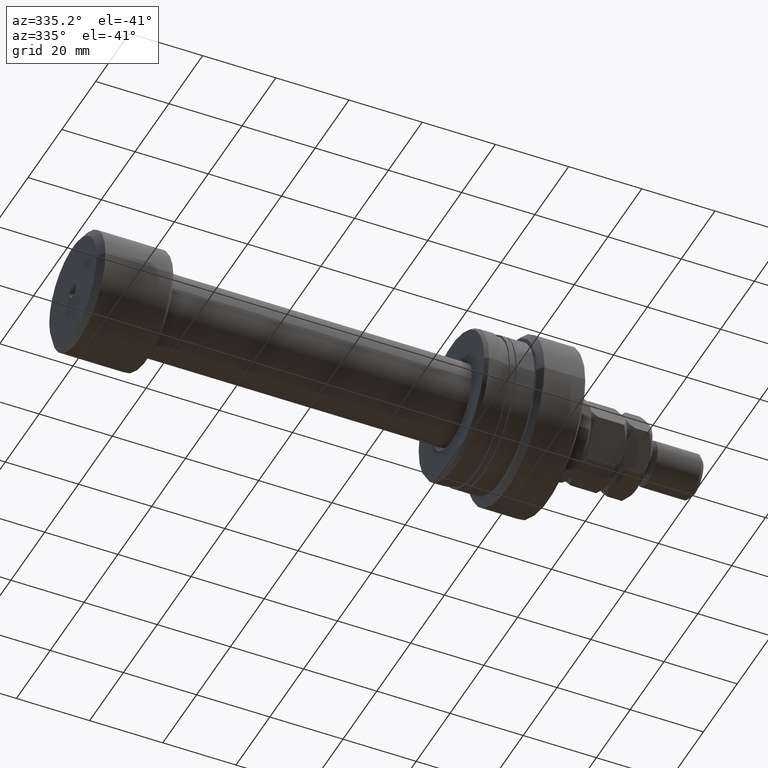
[diagram: clean part render]
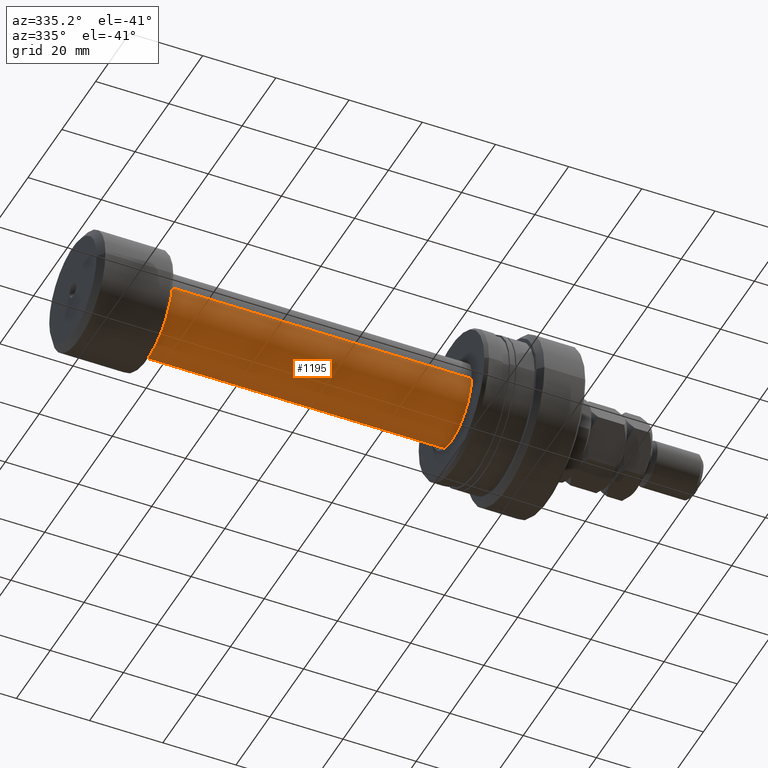
[diagram: same view with one face highlighted and labeled with its STEP entity id]
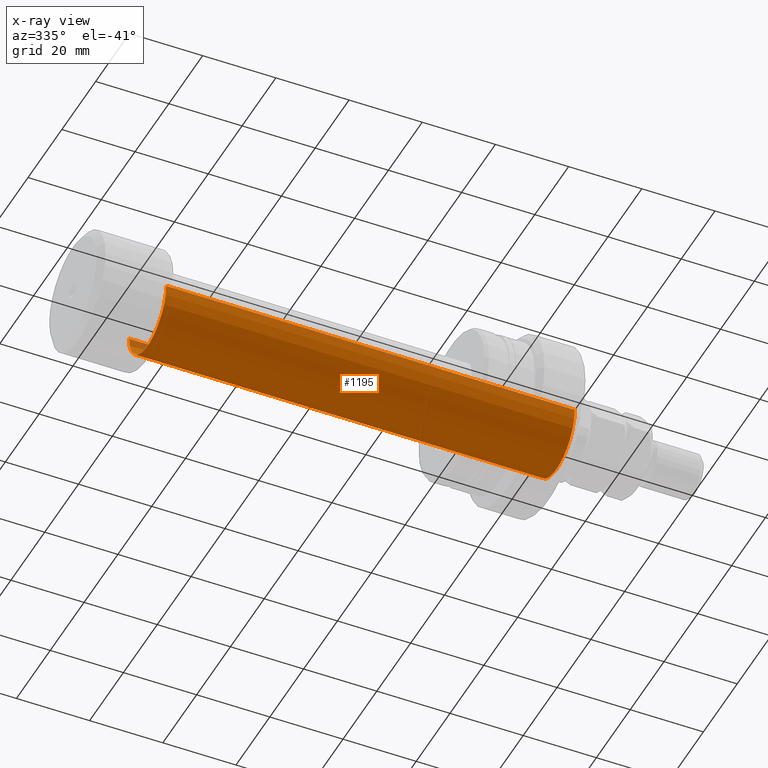
[diagram: x-ray of the same camera — body ghosted, the highlighted face saturated]
A machine part, auxiliary view. The second image highlights one B-rep face of the part: STEP entity #1195.
The next image is the same camera in x-ray: the body ghosted, the highlighted face saturated — about 0% of this face is hidden behind the body in this view.
In plain terms, the highlighted cylindrical surface (partial cylindrical patch) has radius 11 mm, axis along (-1, -0, -0).
Its self-contained STEP definition (entity closure, byte-faithful):
#40 = DIRECTION ( 'NONE',  ( -1.000000000000000000, -1.069542322069065801E-17, -0.000000000000000000 ) ) ;
#80 = LINE ( 'NONE', #1316, #2731 ) ;
#213 = CARTESIAN_POINT ( 'NONE',  ( 132.0667575123237611, 1.412509864978630128E-15, 0.000000000000000000 ) ) ;
#286 = CIRCLE ( 'NONE', #2874, 11.00000000000000000 ) ;
#365 = EDGE_LOOP ( 'NONE', ( #3705, #2195, #1343, #2972 ) ) ;
#388 = CARTESIAN_POINT ( 'NONE',  ( 20.39999999999999503, 2.181866337020893623E-16, 0.000000000000000000 ) ) ;
#462 = CARTESIAN_POINT ( 'NONE',  ( 20.39999999999999503, -11.00000000000000000, 0.000000000000000000 ) ) ;
#523 = CIRCLE ( 'NONE', #2596, 11.00000000000019362 ) ;
#830 = VERTEX_POINT ( 'NONE', #462 ) ;
#855 = DIRECTION ( 'NONE',  ( -1.000000000000000000, -1.069542322069065801E-17, -0.000000000000000000 ) ) ;
#880 = DIRECTION ( 'NONE',  ( -1.000000000000000000, -1.069542322069065801E-17, -0.000000000000000000 ) ) ;
#892 = VERTEX_POINT ( 'NONE', #3853 ) ;
#963 = CARTESIAN_POINT ( 'NONE',  ( -1.176496554275982688E-16, 11.00000000000009592, 1.347111479062100435E-15 ) ) ;
#967 = FACE_OUTER_BOUND ( 'NONE', #365, .T. ) ;
#983 = AXIS2_PLACEMENT_3D ( 'NONE', #3710, #40, #2214 ) ;
#1089 = VERTEX_POINT ( 'NONE', #1239 ) ;
#1124 = CARTESIAN_POINT ( 'NONE',  ( 20.39999999999999503, 11.00000000000000000, 1.347111479062094321E-15 ) ) ;
#1195 = ADVANCED_FACE ( 'NONE', ( #967 ), #2465, .T. ) ;
#1239 = CARTESIAN_POINT ( 'NONE',  ( 132.0667575123237611, -11.00000000000019185, 0.000000000000000000 ) ) ;
#1311 = EDGE_CURVE ( 'NONE', #3611, #830, #286, .T. ) ;
#1316 = CARTESIAN_POINT ( 'NONE',  ( 1.176496554275982688E-16, -11.00000000000009592, 0.000000000000000000 ) ) ;
#1343 = ORIENTED_EDGE ( 'NONE', *, *, #3948, .T. ) ;
#1787 = DIRECTION ( 'NONE',  ( 0.000000000000000000, -1.000000000000000000, 0.000000000000000000 ) ) ;
#1815 = VECTOR ( 'NONE', #880, 1000.000000000000000 ) ;
#2195 = ORIENTED_EDGE ( 'NONE', *, *, #3148, .T. ) ;
#2214 = DIRECTION ( 'NONE',  ( 1.069542322069065801E-17, -1.000000000000000000, 0.000000000000000000 ) ) ;
#2306 = DIRECTION ( 'NONE',  ( 0.000000000000000000, -1.000000000000000000, 0.000000000000000000 ) ) ;
#2465 = CYLINDRICAL_SURFACE ( 'NONE', #983, 11.00000000000009592 ) ;
#2562 = DIRECTION ( 'NONE',  ( -1.000000000000000000, -1.069542322069065801E-17, -0.000000000000000000 ) ) ;
#2596 = AXIS2_PLACEMENT_3D ( 'NONE', #213, #855, #1787 ) ;
#2731 = VECTOR ( 'NONE', #3803, 1000.000000000000000 ) ;
#2874 = AXIS2_PLACEMENT_3D ( 'NONE', #388, #2562, #2306 ) ;
#2972 = ORIENTED_EDGE ( 'NONE', *, *, #1311, .F. ) ;
#2997 = LINE ( 'NONE', #963, #1815 ) ;
#3148 = EDGE_CURVE ( 'NONE', #892, #1089, #523, .T. ) ;
#3611 = VERTEX_POINT ( 'NONE', #1124 ) ;
#3705 = ORIENTED_EDGE ( 'NONE', *, *, #3706, .F. ) ;
#3706 = EDGE_CURVE ( 'NONE', #892, #3611, #2997, .T. ) ;
#3710 = CARTESIAN_POINT ( 'NONE',  ( 0.000000000000000000, 0.000000000000000000, 0.000000000000000000 ) ) ;
#3803 = DIRECTION ( 'NONE',  ( -1.000000000000000000, -1.069542322069065801E-17, -0.000000000000000000 ) ) ;
#3853 = CARTESIAN_POINT ( 'NONE',  ( 132.0667575123237611, 11.00000000000019362, 1.347111479062112268E-15 ) ) ;
#3948 = EDGE_CURVE ( 'NONE', #1089, #830, #80, .T. ) ;